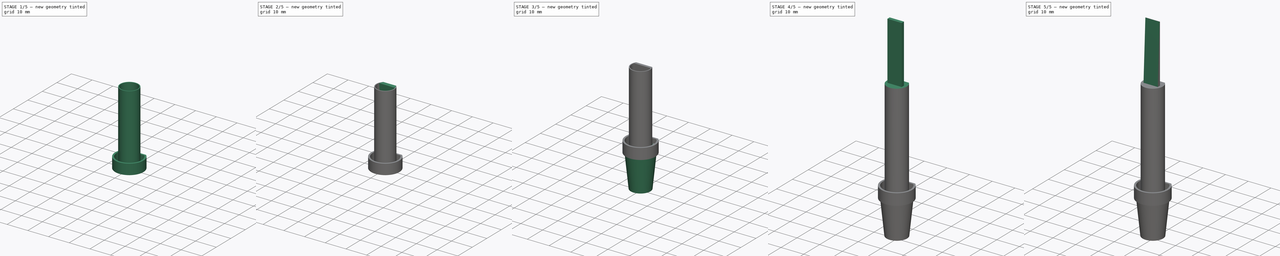
[diagram: build sequence overview — one tinted view per stage of 5, left to right]
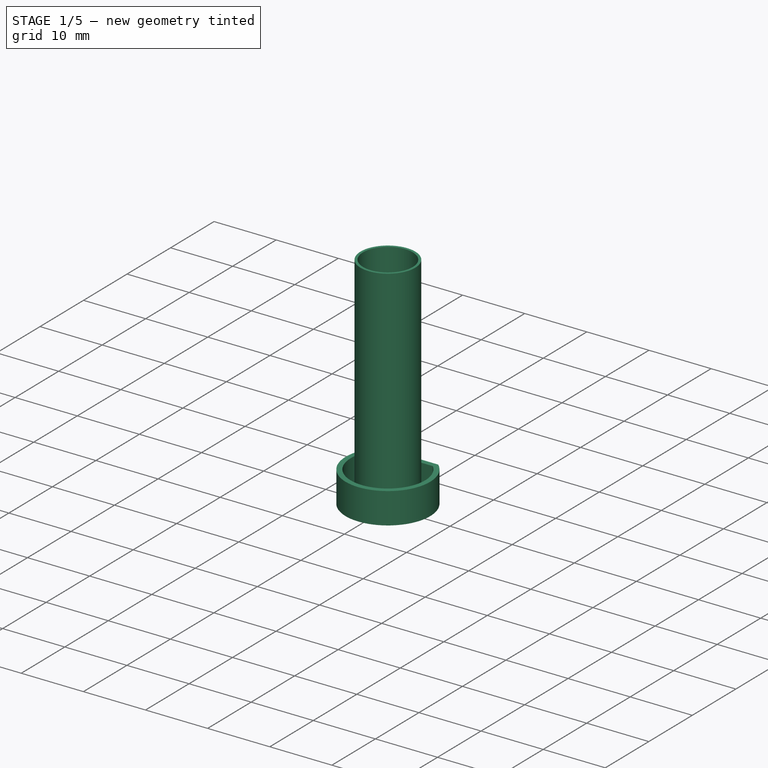
[diagram: stage 1 of 5 — iso view after this stage's code; geometry added in this stage tinted green]
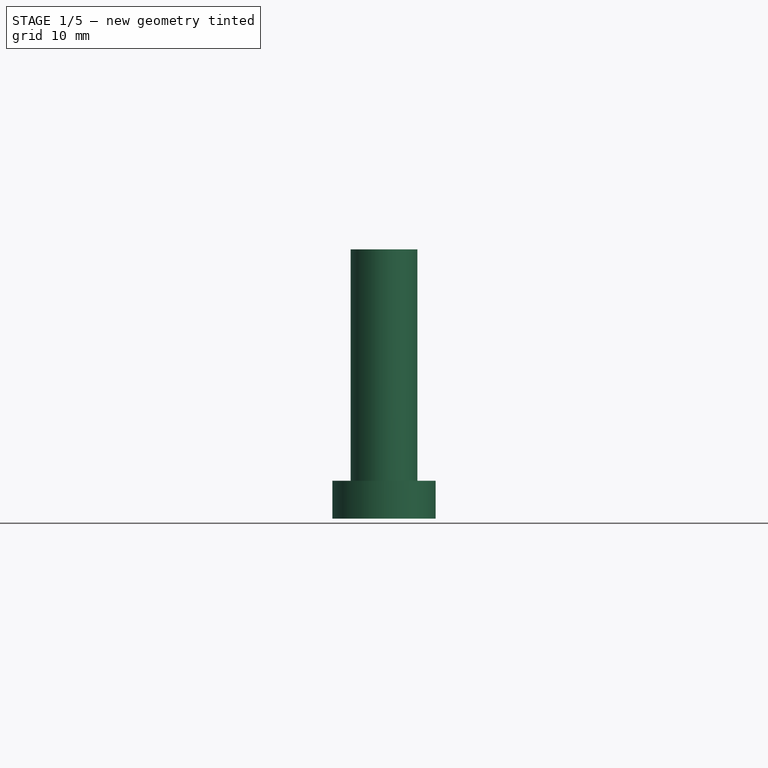
[diagram: stage 1 of 5 — front view after this stage's code; geometry added in this stage tinted green]
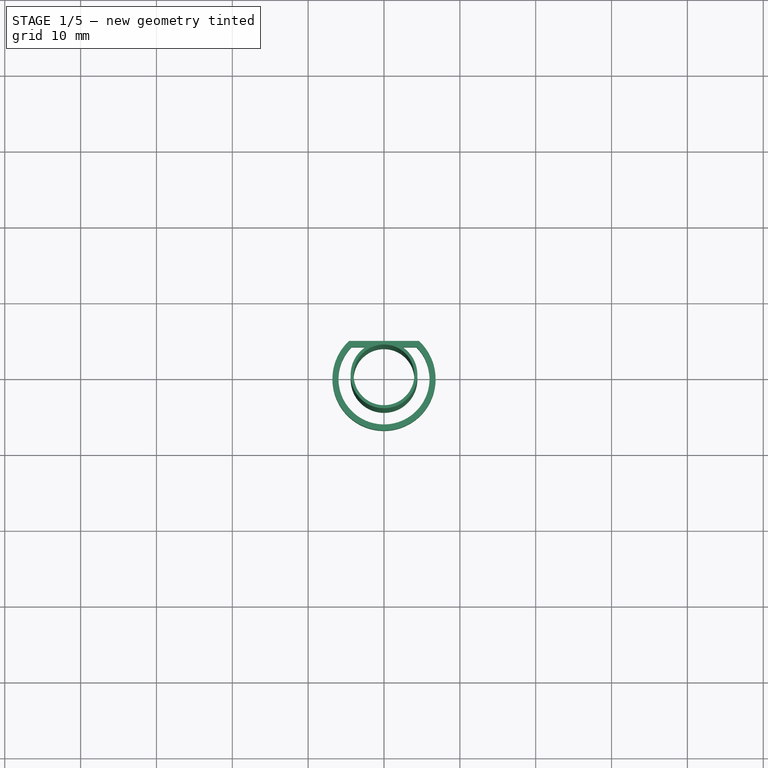
[diagram: stage 1 of 5 — top view after this stage's code; geometry added in this stage tinted green]
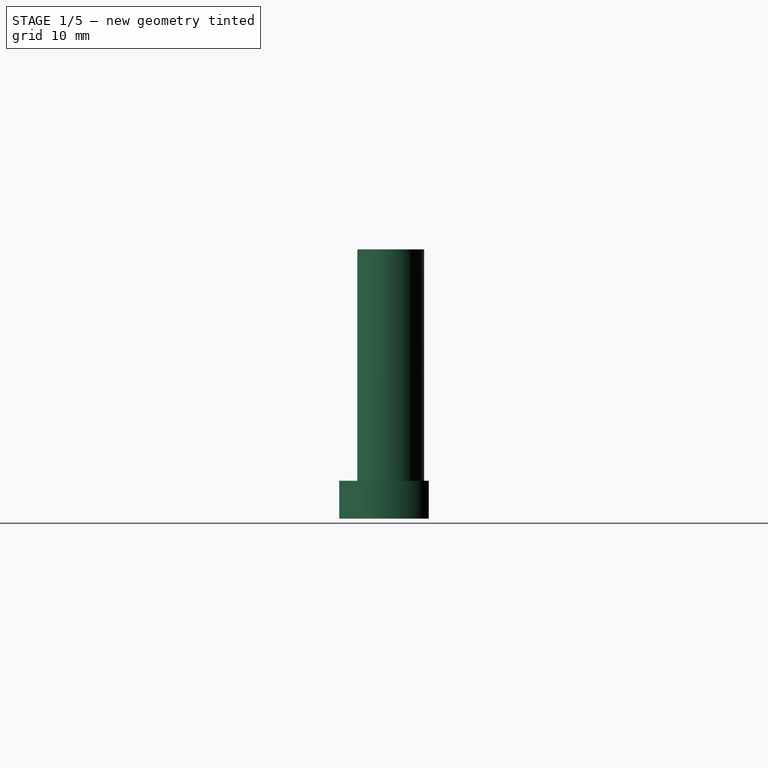
[diagram: stage 1 of 5 — right view after this stage's code; geometry added in this stage tinted green]
FCSTD DOCUMENT  (FreeCAD 1.0R38641 +678 (Git))
Label: stroik1-D-leaf_PLA_flexi-sealing
License: All rights reserved
LicenseURL: https://en.wikipedia.org/wiki/All_rights_reserved
objects: Sketcher::SketchObject×15, PartDesign::Pocket×7, PartDesign::Pad×4, PartDesign::Body×3, PartDesign::Chamfer×2, Part::FeaturePython×1, PartDesign::FeatureBase×1, App::VarSet×1, PartDesign::Mirrored×1, PartDesign::Plane×1, PartDesign::AdditiveLoft×1, PartDesign::ShapeBinder×1
note: 82 computed .brp shape members not serialized (recipe doc carries the construction recipe); baked Part::Feature solids carry a one-line shape summary decoded from their .brp

FEATURE [Part::FeaturePython] Tube  # WARN: FeaturePython — macro-defined, semantics opaque (R4)
  AttacherType = Attacher::AttachEngine3D
  Height = 35.5
  InnerRadius = 4
  OuterRadius = 4.4
  Placement = pos=(0,0,0) rot=(0,1,0;1.5708rad)
  expr: Height = VarSet.leaf_len
  expr: InnerRadius = VarSet.d_inner
  expr: OuterRadius = VarSet.d_outer
FEATURE [PartDesign::FeatureBase] BaseFeature
  BaseFeature = -> Tube
  Suppressed = false
FEATURE [Sketcher::SketchObject] Sketch016
  ArcFitTolerance = 1e-06
  AttachmentSupport = -> [XY_Plane002]
  FullyConstrained = false
  MakeInternals = false
  MapMode = 5
  sketch-geometry (4):
    g0: ArcOfCircle CenterX=0 CenterY=0 CenterZ=0 NormalX=0 NormalY=0 NormalZ=1 AngleXU=0 Radius=6 StartAngle=2.36427 EndAngle=7.06051
    g1: ArcOfCircle CenterX=0 CenterY=0 CenterZ=0 NormalX=0 NormalY=0 NormalZ=1 AngleXU=0 Radius=6.8 StartAngle=2.3137 EndAngle=7.11108
    g2: LineSegment StartX=-4.59971 StartY=5.00826 StartZ=0 EndX=4.59971 EndY=5.00826 EndZ=0
    g3: LineSegment StartX=-4.27675 StartY=4.20826 StartZ=0 EndX=4.27675 EndY=4.20826 EndZ=0
  constraints (11):
    c: Coincident(g0,g-1)
    c: Coincident(g1,g0)
    c: Radius(g1) = 6.8
    c: Radius(g0) = 6
    c: DistanceY(g0,g1) = 0.8
    c: DistanceY(g0,g1) = 0.8
    c: Coincident(g2,g1)
    c: Coincident(g2,g1)
    c: Horizontal(g2)
    c: Coincident(g3,g0)
    c: Coincident(g3,g0)
FEATURE [PartDesign::Pad] Pad004
  Direction = (0,0,1)
  Length = 5
  Length2 = 10
  Profile = -> Sketch016
  ReferenceAxis = -> Sketch016 [N_Axis]
  Refine = true
  Suppressed = false
  Type = 0
FEATURE [PartDesign::Body] Body002  label="Body"
  AllowCompound = false
  Group = -> [Sketch016,Pad004]
  Origin = -> Origin002
  Placement = pos=(35,0,-56) rot=(0,1,0;3.14159rad)
  Tip = -> Pad004
FEATURE [Sketcher::SketchObject] Sketch017
  ArcFitTolerance = 1e-06
  AttachmentSupport = -> [Pocket003]
  FullyConstrained = true
  MakeInternals = false
  MapMode = 5
  Placement = pos=(0,0,45.5) rot=(0,0,1;0rad)
FEATURE [PartDesign::Body] Body  label="stroik"
  AllowCompound = false
  BaseFeature = -> Tube
  Group = -> [BaseFeature,Sketch,Pocket,Sketch001,Pad,Mirrored,Sketch002,Pocket001,Sketch003,Sketch004,DatumPlane,Sketch005,AdditiveLoft,Sketch006,Pad002,Sketch009,Pocket003,Sketch013,Pocket006,Chamfer,Sketch015,Pocket008,Sketch017]
  Origin = -> Origin
  Placement = pos=(0,0,0) rot=(0,1,0;3.14159rad)
  Tip = -> Pocket008
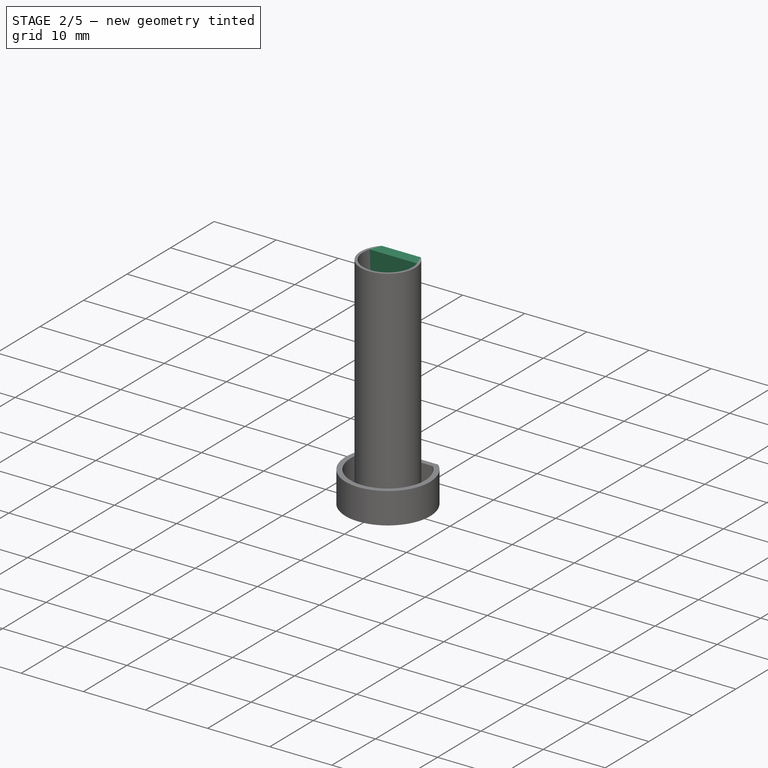
[diagram: stage 2 of 5 — iso view after this stage's code; geometry added in this stage tinted green]
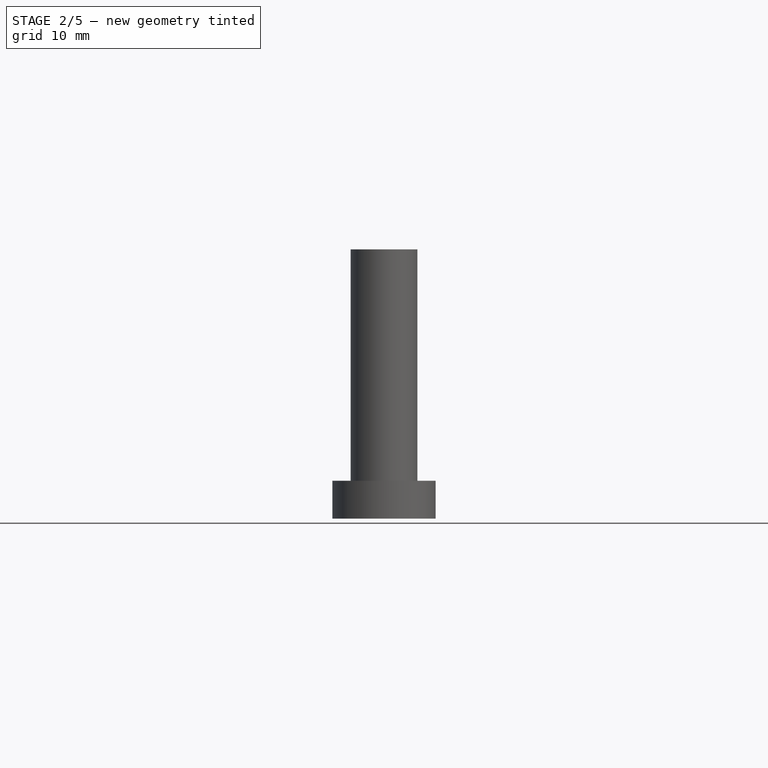
[diagram: stage 2 of 5 — front view after this stage's code; geometry added in this stage tinted green]
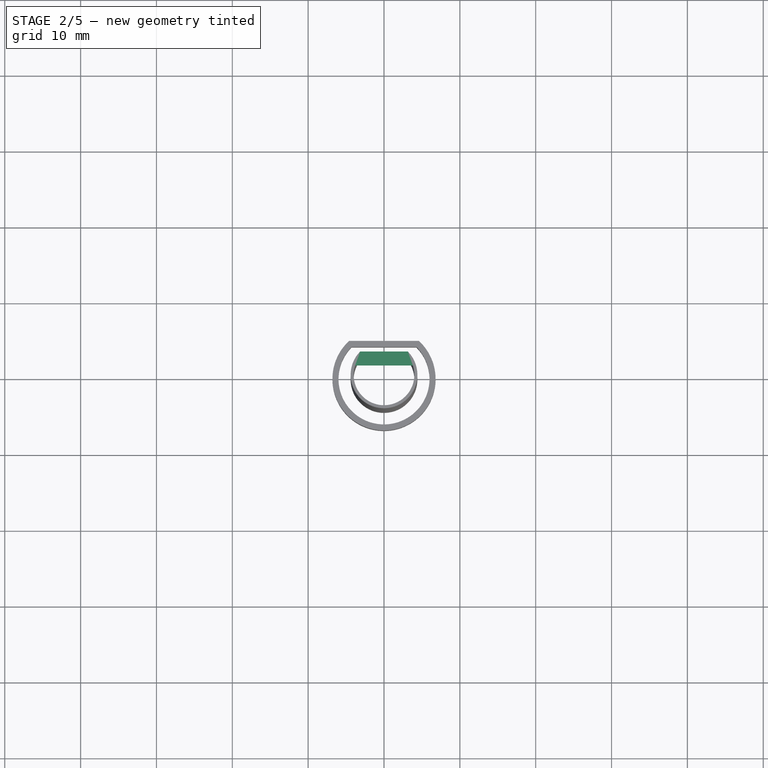
[diagram: stage 2 of 5 — top view after this stage's code; geometry added in this stage tinted green]
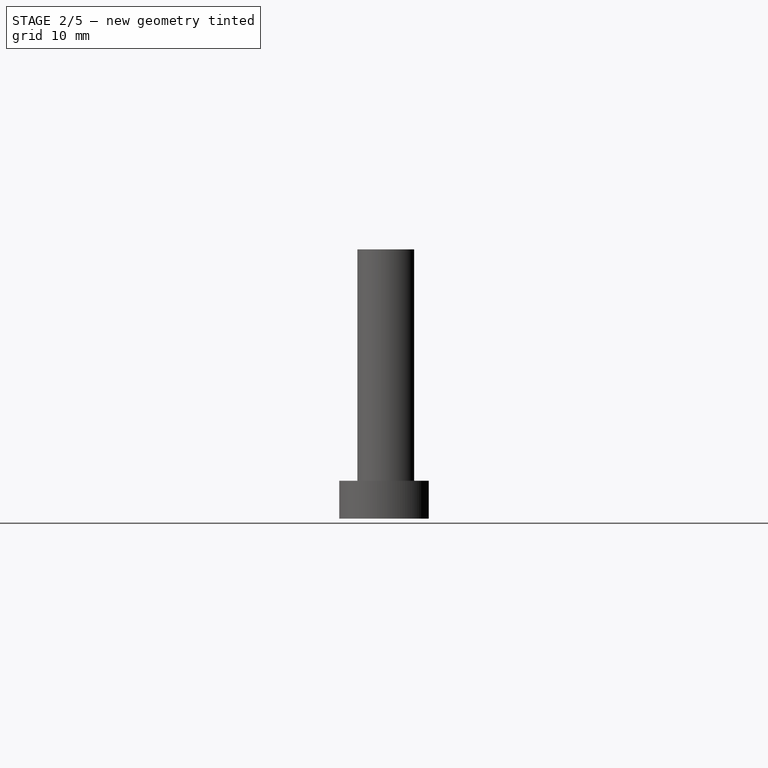
[diagram: stage 2 of 5 — right view after this stage's code; geometry added in this stage tinted green]
FEATURE [App::VarSet] VarSet
  d_inner = 4
  d_outer = 4.4
  d_outer_plug = 6.05
  leaf_end_thickness = 0.19
  leaf_gap = 1.85
  leaf_len = 35.5
  leaf_start_thickness = 1.42
  plug_inner_start = 4
  plug_len = 15
  plug_outer_start = 4.5
FEATURE [Sketcher::SketchObject] Sketch004
  ArcFitTolerance = 1e-06
  FullyConstrained = true
  MakeInternals = false
  MapMode = 5
  Placement = pos=(0,0,0) rot=(1,0,0;3.14159rad)
  expr: Constraints[4] = VarSet.d_outer_plug
  expr: Constraints[7] = VarSet.d_inner
  sketch-geometry (3):
    g0: ArcOfCircle CenterX=0 CenterY=0 CenterZ=0 NormalX=0 NormalY=0 NormalZ=1 AngleXU=0 Radius=4 StartAngle=5.67668 EndAngle=10.0313
    g1: LineSegment StartX=-3.28658 StartY=-2.28 StartZ=0 EndX=3.28658 EndY=-2.28 EndZ=0
    g2: Circle CenterX=0 CenterY=0 CenterZ=0 NormalX=0 NormalY=0 NormalZ=1 AngleXU=0 Radius=6.05
  constraints (8):
    c: Coincident(g1,g0)
    c: Horizontal(g1)
    c: Coincident(g2,g0)
    c: Coincident(g-1,g0)
    c: Radius(g2) = 6.05
    c: Horizontal(g0,g-6)
    c: Coincident(g1,g0)
    c: Radius(g0) = 4
FEATURE [Sketcher::SketchObject] Sketch006
  ArcFitTolerance = 1e-06
  FullyConstrained = true
  MakeInternals = false
  MapMode = 5
  Placement = pos=(0,0,0) rot=(1,0,0;3.14159rad)
  expr: Constraints[22] = 1.1 mm
  sketch-geometry (12):
    g0: LineSegment StartX=3.14223 StartY=-3.08 StartZ=0 EndX=4.4 EndY=0 EndZ=0
    g1: LineSegment StartX=4.4 StartY=0 StartZ=0 EndX=4.14223 EndY=-5.18 EndZ=0
    g2: LineSegment StartX=4.14223 StartY=-5.18 StartZ=0 EndX=2.14223 EndY=-5.18 EndZ=0
    g3: LineSegment StartX=2.14223 StartY=-5.18 StartZ=0 EndX=2.14223 EndY=-4.18 EndZ=0
    g4: LineSegment StartX=2.14223 StartY=-4.18 StartZ=0 EndX=3.14223 EndY=-4.18 EndZ=0
    g5: LineSegment StartX=-4.14223 StartY=-5.18 StartZ=0 EndX=-2.14223 EndY=-5.18 EndZ=0
    g6: LineSegment StartX=-4.4 StartY=0 StartZ=0 EndX=-4.14223 EndY=-5.18 EndZ=0
    g7: LineSegment StartX=-3.14223 StartY=-3.08 StartZ=0 EndX=-4.4 EndY=0 EndZ=0
    g8: LineSegment StartX=-2.14223 StartY=-4.18 StartZ=0 EndX=-3.14223 EndY=-4.18 EndZ=0
    g9: LineSegment StartX=-2.14223 StartY=-5.18 StartZ=0 EndX=-2.14223 EndY=-4.18 EndZ=0
    g10: LineSegment StartX=3.14223 StartY=-4.18 StartZ=0 EndX=3.14223 EndY=-3.08 EndZ=0
    g11: LineSegment StartX=-3.14223 StartY=-4.18 StartZ=0 EndX=-3.14223 EndY=-3.08 EndZ=0
  constraints (29):
    c: Coincident(g-5,g0)
    c: Coincident(g0,g1)
    c: Coincident(g1,g2)
    c: Horizontal(g2)
    c: Coincident(g2,g3)
    c: Vertical(g3)
    c: Coincident(g3,g4)
    c: Horizontal(g4)
    c: Coincident(g4,g10)
    c: Coincident(g7,g6)
    c: Coincident(g6,g5)
    c: Coincident(g5,g9)
    c: Vertical(g9)
    c: Coincident(g9,g8)
    c: Horizontal(g8)
    c: Coincident(g8,g11)
    c: Symmetric(g2,g5,g-2)
    c: DistanceX(g4,g4) = 1
    c: Symmetric(g4,g11,g-2)
    c: Symmetric(g0,g6,g-2)
    c: DistanceY(g3,g3) = 1
    c: Symmetric(g7,g0,g-2)
    c: DistanceY(g10,g0) = 1.1
    c: DistanceX(g2,g2) = 2
    c: Coincident(g0,g-5)
    c: Symmetric(g5,g1,g-2)
    c: Vertical(g10)
    c: Symmetric(g11,g10,g-2)
    c: Coincident(g10,g0)
FEATURE [Sketcher::SketchObject] Sketch009
  ArcFitTolerance = 1e-06
  AttachmentSupport = -> [YZ_Plane]
  FullyConstrained = true
  MakeInternals = false
  MapMode = 5
  Placement = pos=(0,0,0) rot=(0.57735,0.57735,0.57735;2.0944rad)
  expr: .Constraints.gap = VarSet.leaf_gap
  expr: Constraints[19] = 3 / 4 * VarSet.leaf_len * 2 / 2
  expr: Constraints[1] = VarSet.leaf_len / 4
  expr: Constraints[20] = 3 / 4 * VarSet.leaf_len * 2
  sketch-geometry (13):
    g0: GeomPoint X=3.08 Y=8.875 Z=0
    g1: Circle [constr] CenterX=3.08 CenterY=8.875 CenterZ=0 NormalX=0 NormalY=0 NormalZ=1 AngleXU=0 Radius=1
    g2: Circle [constr] CenterX=3.08 CenterY=35.5 CenterZ=0 NormalX=0 NormalY=0 NormalZ=1 AngleXU=0 Radius=1
    g3: Circle [constr] CenterX=0.390239 CenterY=62.125 CenterZ=0 NormalX=0 NormalY=0 NormalZ=1 AngleXU=0 Radius=1
    g4: BSplineCurve [constr] PolesCount=3 KnotsCount=2 Degree=2 IsPeriodic=0
    g5: GeomPoint [constr] X=3.08 Y=8.875 Z=0
    g6: GeomPoint [constr] X=0.390239 Y=62.125 Z=0
    g7: LineSegment [constr] StartX=0.390239 StartY=62.125 StartZ=0 EndX=3.08 EndY=8.875 EndZ=0
    g8: LineSegment StartX=103.08 StartY=35.5 StartZ=0 EndX=103.08 EndY=8.875 EndZ=0
    g9: LineSegment StartX=103.08 StartY=8.875 StartZ=0 EndX=3.08 EndY=8.875 EndZ=0
    g10: LineSegment StartX=2.3561 StartY=36.5 StartZ=0 EndX=103.08 EndY=35.5 EndZ=0
    g11: LineSegment [constr] StartX=3.08 StartY=45.5 StartZ=0 EndX=1.23 EndY=45.5 EndZ=0
    g12: LineSegment StartX=2.3561 StartY=36.5 StartZ=0 EndX=3.08 EndY=8.875 EndZ=0
  constraints (31):
    c: PointOnObject(g0,g-3)
    c: DistanceY(g-3,g0) = 8.875
    c: Weight(g1) = 1
    c: Equal(g1,g2)
    c: Equal(g1,g3)
    c: InternalAlignment(g1,g4)
    c: InternalAlignment(g2,g4)
    c: InternalAlignment(g3,g4)
    c: InternalAlignment(g5,g4)
    c: InternalAlignment(g6,g4)
    c: Coincident(g1,g0)
    c: Coincident(g7,g4)
    c: Coincident(g7,g4)
    c: Vertical(g8)
    c: Coincident(g8,g9)
    c: Coincident(g9,g0)
    c: Horizontal(g9)
    c: DistanceX(g9,g9) = 100
    c: Vertical(g-3,g2)
    c: DistanceY(g0,g2) = 26.625
    c: DistanceY(g0,g4) = 53.25
    c: Coincident(g10,g8)
    c: Coincident(g11,g-3)
    c: PointOnObject(g11,g7)
    c: Horizontal(g11)
    c: DistanceX(g11,g11) = 1.85  'gap'
    c: DistanceY(g2,g10) = 1
    c: Horizontal(g8,g2)
    c: Coincident(g12,g10)
    c: Coincident(g12,g0)
    c: PointOnObject(g10,g4)
FEATURE [Sketcher::SketchObject] Sketch
  ArcFitTolerance = 1e-06
  AttachmentSupport = -> [YZ_Plane]
  ExternalGeometry = -> [BaseFeature]
  FullyConstrained = true
  MakeInternals = false
  MapMode = 5
  Placement = pos=(0,0,0) rot=(0.57735,0.57735,0.57735;2.0944rad)
  expr: Constraints[14] = VarSet.leaf_len / 4
  expr: Constraints[8] = VarSet.d_outer * 0.3
  sketch-geometry (6):
    g0: LineSegment StartX=4.4 StartY=35.5 StartZ=0 EndX=3.08 EndY=35.5 EndZ=0
    g1: LineSegment StartX=3.08 StartY=0 StartZ=0 EndX=4.4 EndY=0 EndZ=0
    g2: LineSegment StartX=4.4 StartY=0 StartZ=0 EndX=4.4 EndY=8.875 EndZ=0
    g3: LineSegment StartX=4.4 StartY=8.875 StartZ=0 EndX=4.4 EndY=35.5 EndZ=0
    g4: LineSegment StartX=3.08 StartY=35.5 StartZ=0 EndX=3.08 EndY=8.875 EndZ=0
    g5: LineSegment StartX=3.08 StartY=8.875 StartZ=0 EndX=3.08 EndY=0 EndZ=0
  constraints (17):
    c: Coincident(g0,g4)
    c: Coincident(g5,g1)
    c: Coincident(g1,g2)
    c: Coincident(g3,g0)
    c: Horizontal(g0)
    c: Horizontal(g1)
    c: Coincident(g0,g-3)
    c: PointOnObject(g5,g-4)
    c: DistanceX(g5,g1) = 1.32
    c: Coincident(g2,g3)
    c: Vertical(g2)
    c: Vertical(g3)
    c: Coincident(g4,g5)
    c: Vertical(g5)
    c: DistanceY(g2,g2) = 8.875
    c: Horizontal(g2,g4)
    c: Vertical(g4)
FEATURE [Sketcher::SketchObject] Sketch001
  ArcFitTolerance = 1e-06
  AttachmentSupport = -> [YZ_Plane]
  ExternalGeometry = -> [Sketch]
  FullyConstrained = true
  MakeInternals = false
  MapMode = 5
  Placement = pos=(0,0,0) rot=(0.57735,0.57735,0.57735;2.0944rad)
  expr: Constraints[12] = 0.8
  expr: Constraints[13] = VarSet.leaf_gap
  sketch-geometry (6):
    g0: LineSegment StartX=3.08 StartY=0 StartZ=0 EndX=2.28 EndY=0 EndZ=0
    g1: LineSegment StartX=2.28 StartY=0 StartZ=0 EndX=2.28 EndY=8.875 EndZ=0
    g2: LineSegment StartX=2.28 StartY=8.875 StartZ=0 EndX=1.23 EndY=35.5 EndZ=0
    g3: LineSegment StartX=1.23 StartY=35.5 StartZ=0 EndX=3.08 EndY=35.5 EndZ=0
    g4: LineSegment StartX=3.08 StartY=35.5 StartZ=0 EndX=3.08 EndY=8.875 EndZ=0
    g5: LineSegment StartX=3.08 StartY=8.875 StartZ=0 EndX=3.08 EndY=0 EndZ=0
  constraints (15):
    c: Coincident(g-4,g0)
    c: PointOnObject(g0,g-1)
    c: Coincident(g0,g1)
    c: Vertical(g1)
    c: Coincident(g1,g2)
    c: Coincident(g2,g3)
    c: Coincident(g3,g-3)
    c: Horizontal(g3)
    c: Coincident(g3,g4)
    c: Coincident(g4,g-4)
    c: Coincident(g4,g5)
    c: Coincident(g5,g0)
    c: DistanceX(g1,g4) = 0.8
    c: DistanceX(g2,g3) = 1.85
    c: Horizontal(g1,g4)
FEATURE [PartDesign::Pocket] Pocket  label="1 ścięcie"
  BaseFeature = -> BaseFeature
  Direction = (-1,0,0)
  Length = 5
  Length2 = 5
  Midplane = true
  Profile = -> Sketch
  ReferenceAxis = -> Sketch [N_Axis]
  Refine = true
  Suppressed = false
  Type = 1
FEATURE [PartDesign::Pad] Pad  label="uzupełnienie"
  AlongSketchNormal = false
  BaseFeature = -> Pocket
  Direction = (1,0,0)
  Length = 13
  Length2 = 10
  Midplane = true
  Profile = -> Sketch001
  ReferenceAxis = -> Sketch001 [N_Axis]
  Refine = true
  Suppressed = false
  Type = 1
  UpToShape = -> [Pocket]
FEATURE [PartDesign::Mirrored] Mirrored
  BaseFeature = -> Pad
  MirrorPlane = -> YZ_Plane
  Originals = -> [Pad]
  Refine = true
  Suppressed = false
  TransformMode = 0
FEATURE [Sketcher::SketchObject] Sketch002
  ArcFitTolerance = 1e-06
  AttachmentSupport = -> [Mirrored]
  ExternalGeometry = -> [Mirrored]
  FullyConstrained = true
  MakeInternals = false
  MapMode = 5
  Placement = pos=(0,3.08,0) rot=(0,0.707107,0.707107;3.14159rad)
  expr: Constraints[11] = VarSet.d_outer / 3
  expr: Constraints[8] = VarSet.leaf_len / 10
  expr: Constraints[9] = VarSet.leaf_len / 3
  sketch-geometry (4):
    g0: LineSegment StartX=1.67556 StartY=20.1167 StartZ=0 EndX=1.67556 EndY=31.95 EndZ=0
    g1: LineSegment StartX=1.67556 StartY=31.95 StartZ=0 EndX=-1.67556 EndY=31.95 EndZ=0
    g2: LineSegment StartX=-1.67556 StartY=31.95 StartZ=0 EndX=-1.67556 EndY=20.1167 EndZ=0
    g3: ArcOfCircle CenterX=0 CenterY=20.1167 CenterZ=0 NormalX=0 NormalY=0 NormalZ=1 AngleXU=0 Radius=1.67556 StartAngle=3.14159 EndAngle=6.28319
  constraints (12):
    c: Coincident(g0,g1)
    c: Coincident(g1,g2)
    c: Coincident(g3,g2)
    c: Coincident(g3,g0)
    c: PointOnObject(g3,g-2)
    c: Horizontal(g0,g2)
    c: Horizontal(g2,g3)
    c: Symmetric(g0,g1,g-2)
    c: DistanceY(g1,g-7) = 3.55
    c: DistanceY(g3,g1) = 11.8333
    c: Vertical(g1,g2)
    c: DistanceX(g0,g-6) = 1.46667
FEATURE [PartDesign::Pocket] Pocket001  label="dziurka"
  BaseFeature = -> Mirrored
  Direction = (0,-1,2e-16)
  Length = 2
  Length2 = 5
  Profile = -> Sketch002
  ReferenceAxis = -> Sketch002 [N_Axis]
  Refine = true
  Suppressed = false
  Type = 0
  expr: Length = VarSet.d_inner / 2
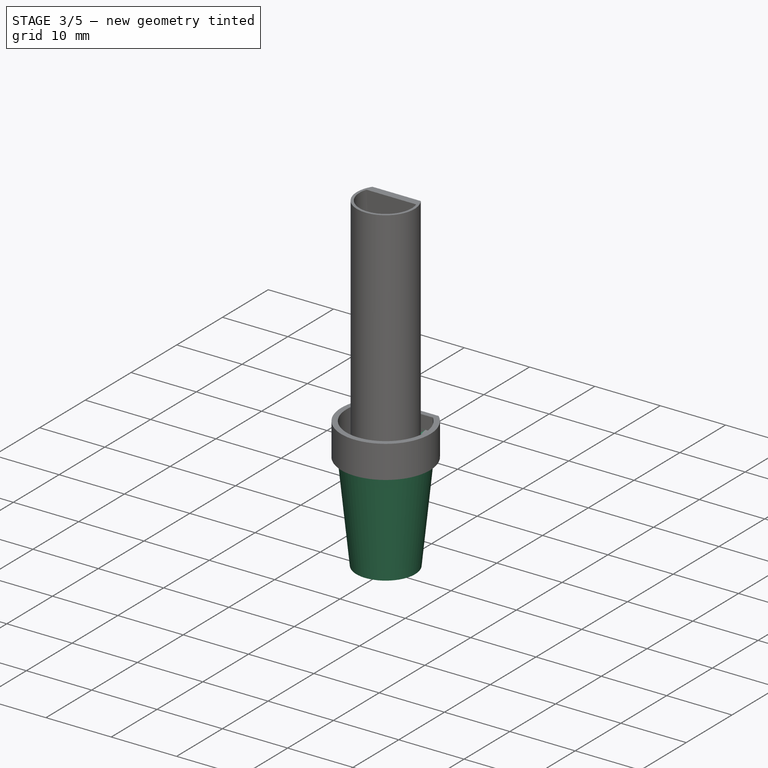
[diagram: stage 3 of 5 — iso view after this stage's code; geometry added in this stage tinted green]
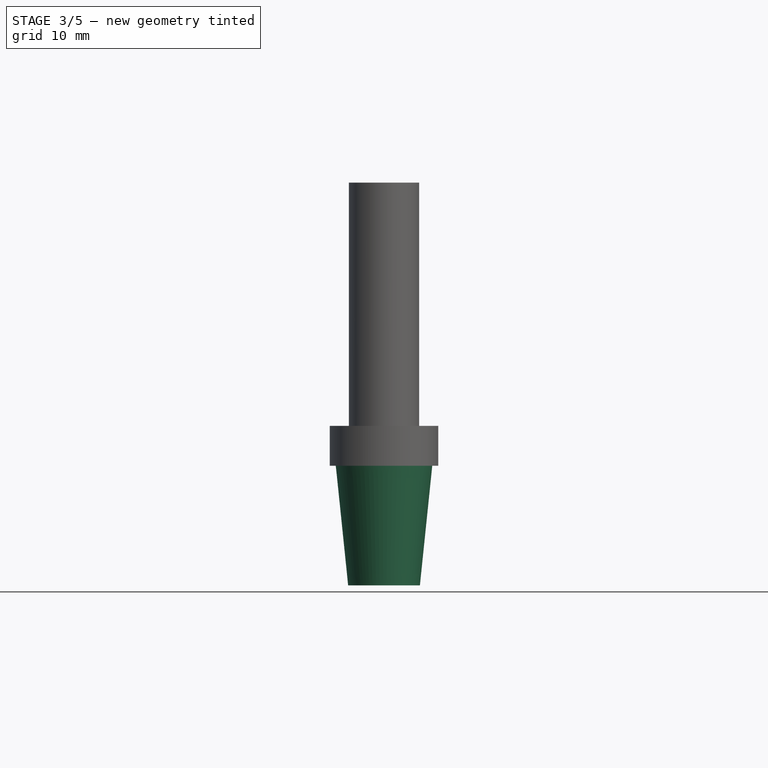
[diagram: stage 3 of 5 — front view after this stage's code; geometry added in this stage tinted green]
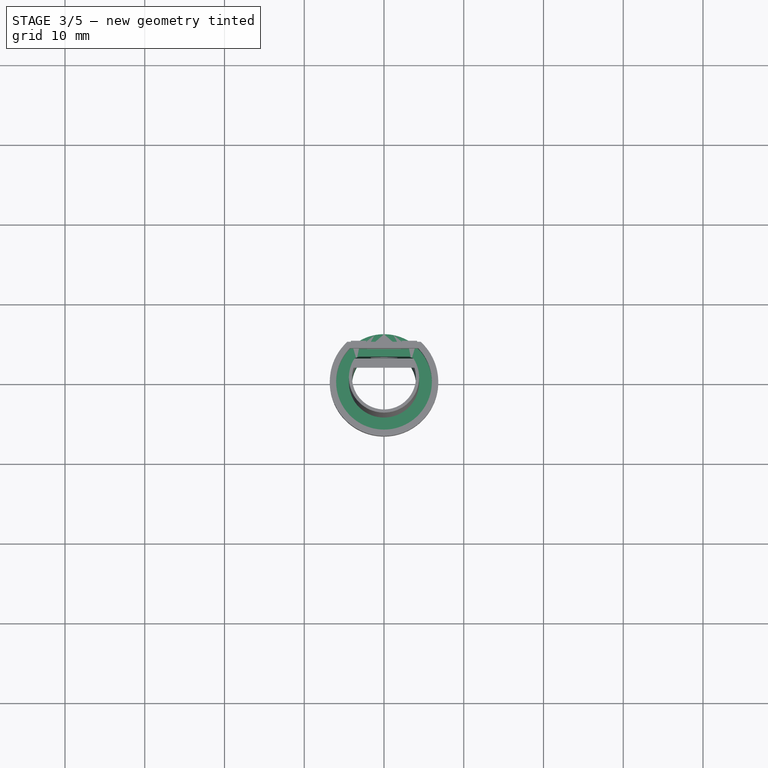
[diagram: stage 3 of 5 — top view after this stage's code; geometry added in this stage tinted green]
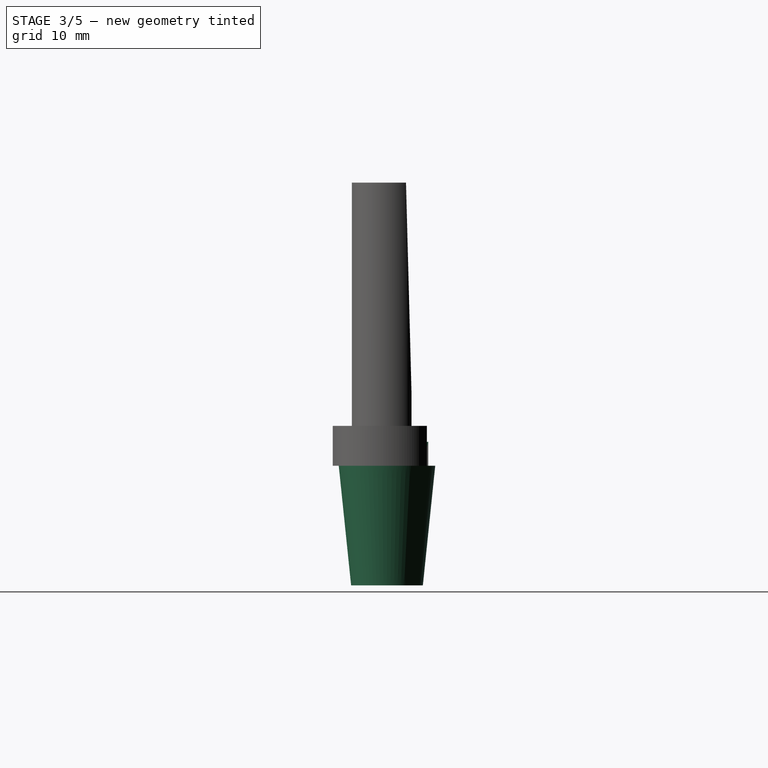
[diagram: stage 3 of 5 — right view after this stage's code; geometry added in this stage tinted green]
FEATURE [Sketcher::SketchObject] Sketch003
  ArcFitTolerance = 1e-06
  AttachmentSupport = -> [Pocket001]
  ExternalGeometry = -> [Pocket001]
  FullyConstrained = true
  MakeInternals = false
  MapMode = 5
  Placement = pos=(0,0,35.5) rot=(0,0,1;0rad)
  sketch-geometry (2):
    g0: ArcOfCircle CenterX=0 CenterY=0 CenterZ=0 NormalX=0 NormalY=0 NormalZ=1 AngleXU=0 Radius=4.4 StartAngle=2.3662 EndAngle=7.05858
    g1: LineSegment StartX=-3.14223 StartY=3.08 StartZ=0 EndX=3.14223 EndY=3.08 EndZ=0
  constraints (5):
    c: Coincident(g0,g-1)
    c: Coincident(g0,g-4)
    c: Coincident(g1,g0)
    c: Coincident(g1,g0)
    c: Horizontal(g1)
FEATURE [PartDesign::Plane] DatumPlane
  AttachmentOffset = pos=(0,0,15) rot=(0,0,1;0rad)
  AttachmentSupport = -> [Pocket001]
  Length = 60
  MapMode = 5
  Placement = pos=(0,0,-15) rot=(1,0,0;3.14159rad)
  ResizeMode = 0
  Width = 60
  expr: .AttachmentOffset.Base.z = VarSet.plug_len
FEATURE [Sketcher::SketchObject] Sketch005
  ArcFitTolerance = 1e-06
  AttachmentSupport = -> [DatumPlane]
  ExternalGeometry = -> [Sketch004]
  FullyConstrained = true
  MakeInternals = false
  MapMode = 5
  Placement = pos=(0,0,-15) rot=(1,0,0;3.14159rad)
  expr: Constraints[2] = VarSet.plug_inner_start
  expr: Constraints[3] = VarSet.plug_outer_start
  sketch-geometry (2):
    g0: Circle CenterX=0 CenterY=0 CenterZ=0 NormalX=0 NormalY=0 NormalZ=1 AngleXU=0 Radius=4
    g1: Circle CenterX=0 CenterY=0 CenterZ=0 NormalX=0 NormalY=0 NormalZ=1 AngleXU=0 Radius=4.5
  constraints (4):
    c: Coincident(g0,g-1)
    c: Coincident(g1,g0)
    c: Radius(g0) = 4
    c: Radius(g1) = 4.5
FEATURE [PartDesign::AdditiveLoft] AdditiveLoft  label="dziubek"
  BaseFeature = -> Pocket001
  Closed = false
  Profile = -> Sketch005
  Refine = true
  Ruled = false
  Sections = -> [Sketch004]
  Suppressed = false
FEATURE [PartDesign::Pad] Pad002  label="uchwyt na listek"
  BaseFeature = -> AdditiveLoft
  Direction = (0,0,-1)
  Length = 3
  Length2 = 10
  Profile = -> Sketch006
  ReferenceAxis = -> Sketch006 [N_Axis]
  Refine = true
  Reversed = true
  Suppressed = false
  Type = 0
  expr: Length = 3 mm
FEATURE [PartDesign::Pocket] Pocket003  label="2 ścięcie"
  BaseFeature = -> Pad002
  Direction = (-1,0,0)
  Length = 100
  Length2 = 5
  Midplane = true
  Profile = -> Sketch009
  ReferenceAxis = -> Sketch009 [N_Axis]
  Refine = true
  Suppressed = false
  Type = 0
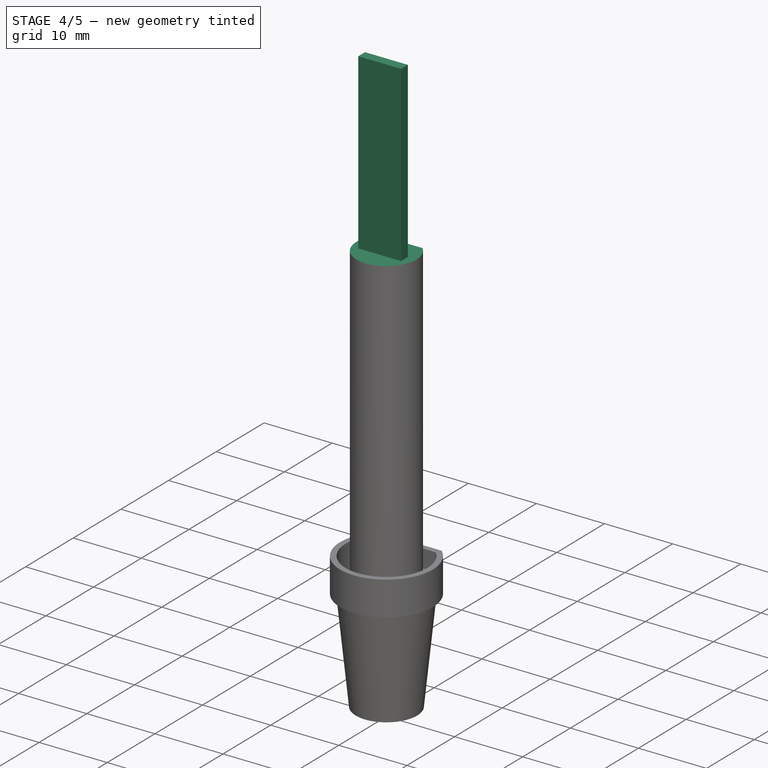
[diagram: stage 4 of 5 — iso view after this stage's code; geometry added in this stage tinted green]
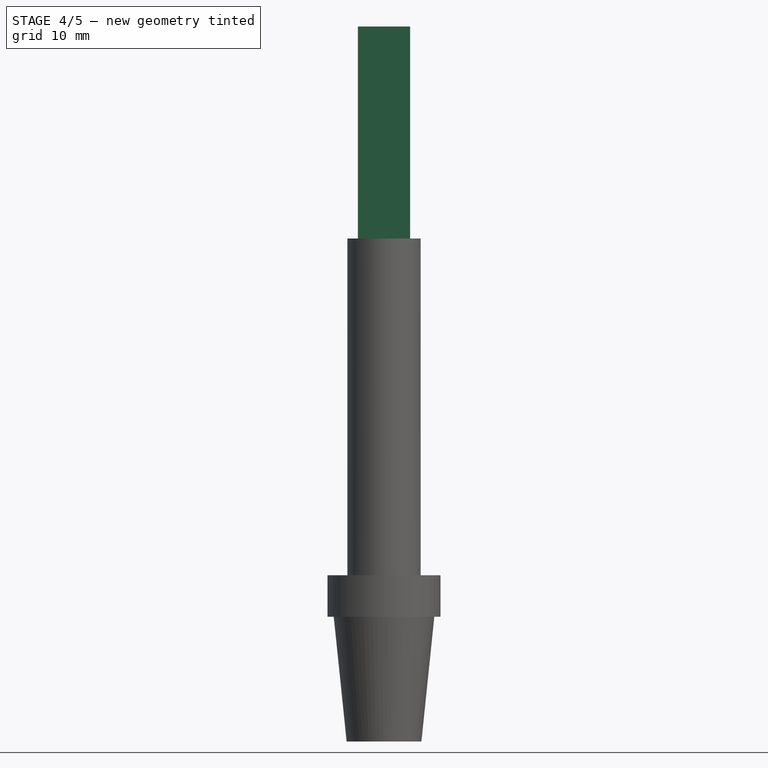
[diagram: stage 4 of 5 — front view after this stage's code; geometry added in this stage tinted green]
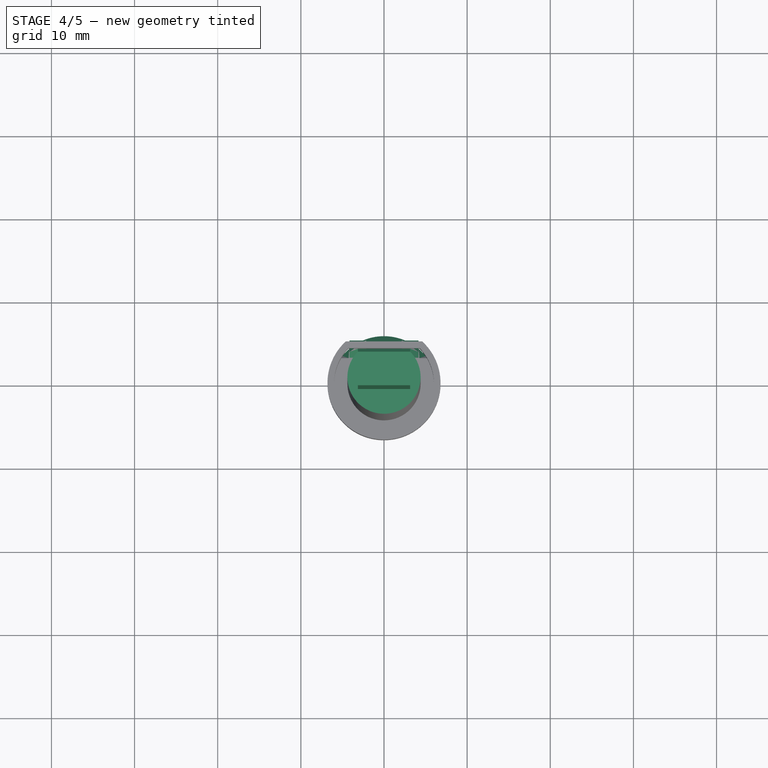
[diagram: stage 4 of 5 — top view after this stage's code; geometry added in this stage tinted green]
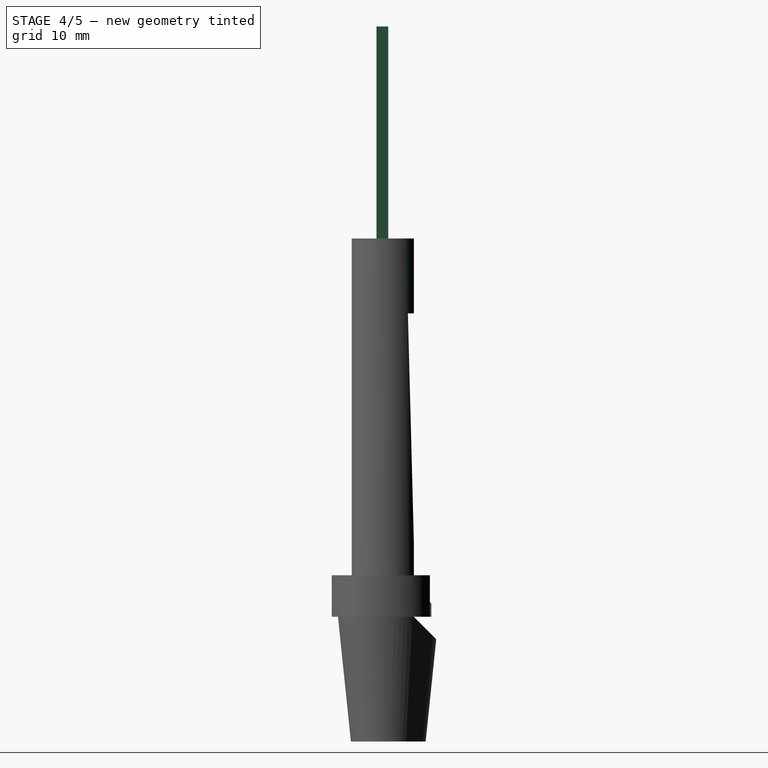
[diagram: stage 4 of 5 — right view after this stage's code; geometry added in this stage tinted green]
FEATURE [PartDesign::ShapeBinder] ShapeBinder
  Support = -> [Mirrored]
  TraceSupport = false
FEATURE [Sketcher::SketchObject] Sketch010  label="main shape"
  ArcFitTolerance = 1e-06
  AttachmentSupport = -> [XZ_Plane001]
  ExternalGeometry = -> [ShapeBinder]
  FullyConstrained = true
  MakeInternals = false
  MapMode = 5
  Placement = pos=(0,0,0) rot=(1,0,0;1.5708rad)
  expr: Constraints[6] = VarSet.leaf_len / 4
  expr: Constraints[9] = VarSet.leaf_len
  sketch-geometry (6):
    g0: LineSegment StartX=-3.14223 StartY=35.5 StartZ=0 EndX=3.14223 EndY=35.5 EndZ=0
    g1: LineSegment StartX=3.14223 StartY=35.5 StartZ=0 EndX=3.14223 EndY=44.375 EndZ=0
    g2: LineSegment StartX=-3.14223 StartY=44.375 StartZ=0 EndX=-3.14223 EndY=35.5 EndZ=0
    g3: LineSegment StartX=3.14223 StartY=44.375 StartZ=0 EndX=3.14223 EndY=71 EndZ=0
    g4: LineSegment StartX=-3.14223 StartY=44.375 StartZ=0 EndX=-3.14223 EndY=71 EndZ=0
    g5: LineSegment StartX=-3.14223 StartY=71 StartZ=0 EndX=3.14223 EndY=71 EndZ=0
  constraints (15):
    c: Coincident(g0,g1)
    c: Coincident(g2,g0)
    c: Vertical(g1)
    c: Vertical(g2)
    c: Coincident(g0,g-3)
    c: Coincident(g0,g-3)
    c: DistanceY(g1,g1) = 8.875
    c: Coincident(g3,g1)
    c: Symmetric(g3,g4,g-2)
    c: DistanceY(g0,g3) = 35.5
    c: Horizontal(g2,g1)
    c: Coincident(g4,g2)
    c: Coincident(g5,g4)
    c: Coincident(g5,g3)
    c: Vertical(g3)
FEATURE [PartDesign::Pad] Pad003
  Direction = (0,-1,2e-16)
  Length = 1.42
  Length2 = 10
  Placement = pos=(0,0,0) rot=(1,0,0;1.5708rad)
  Profile = -> Sketch010
  ReferenceAxis = -> Sketch010 [N_Axis]
  Refine = true
  Suppressed = false
  Type = 0
  expr: Length = VarSet.leaf_start_thickness
FEATURE [Sketcher::SketchObject] Sketch013
  ArcFitTolerance = 1e-06
  AttachmentSupport = -> [YZ_Plane]
  FullyConstrained = true
  MakeInternals = false
  MapMode = 5
  Placement = pos=(0,0,0) rot=(0.57735,0.57735,0.57735;2.0944rad)
  sketch-geometry (3):
    g0: LineSegment StartX=3.08 StartY=0 StartZ=0 EndX=17.2221 EndY=-14.1421 EndZ=0
    g1: LineSegment StartX=17.2221 StartY=-14.1421 StartZ=0 EndX=17.2221 EndY=0 EndZ=0
    g2: LineSegment StartX=17.2221 StartY=0 StartZ=0 EndX=3.08 EndY=0 EndZ=0
  constraints (8):
    c: Coincident(g-3,g0)
    c: Coincident(g0,g1)
    c: Vertical(g1)
    c: Coincident(g1,g2)
    c: Coincident(g2,g0)
    c: Angle(g-2,g0) = 0.785398
    c: Distance(g0,g0) = 20
    c: Angle(g0,g2) = 0.785398
FEATURE [PartDesign::Pocket] Pocket006  label="dziobek wyciety"
  BaseFeature = -> Pocket003
  Direction = (-1,0,0)
  Length = 5
  Length2 = 5
  Midplane = true
  Profile = -> Sketch013
  ReferenceAxis = -> Sketch013 [N_Axis]
  Refine = true
  Suppressed = false
  Type = 1
FEATURE [PartDesign::Body] Body001  label="listek"
  AllowCompound = false
  Group = -> [ShapeBinder,Sketch010,Pad003,Sketch011,Pocket004,Sketch012,Pocket005,Chamfer002]
  Origin = -> Origin001
  Placement = pos=(1.27e-14,25,32) rot=(-1,0,0;3.14159rad)
  Tip = -> Chamfer002
FEATURE [PartDesign::Chamfer] Chamfer  label="uchwyt ma ścięcie001"
  Angle = 45
  Base = -> Pocket006 [Edge89,?Edge90]
  BaseFeature = -> Pocket006
  ChamferType = 0
  FlipDirection = false
  Refine = true
  Size = 1.4
  Size2 = 1
  SupportTransform = false
  Suppressed = false
  UseAllEdges = false
FEATURE [Sketcher::SketchObject] Sketch015
  ArcFitTolerance = 1e-06
  AttachmentSupport = -> [Chamfer]
  FullyConstrained = true
  MakeInternals = false
  MapMode = 5
  Placement = pos=(0,5.18,0) rot=(0,0.707107,0.707107;3.14159rad)
  sketch-geometry (6):
    g0: LineSegment StartX=-4.14223 StartY=3 StartZ=0 EndX=-2.14223 EndY=1.5 EndZ=0
    g1: LineSegment StartX=-2.14223 StartY=1.5 StartZ=0 EndX=-2.14223 EndY=3 EndZ=0
    g2: LineSegment StartX=-2.14223 StartY=3 StartZ=0 EndX=-4.14223 EndY=3 EndZ=0
    g3: LineSegment StartX=2.14223 StartY=3 StartZ=0 EndX=2.14223 EndY=1.5 EndZ=0
    g4: LineSegment StartX=2.14223 StartY=1.5 StartZ=0 EndX=4.14223 EndY=3 EndZ=0
    g5: LineSegment StartX=4.14223 StartY=3 StartZ=0 EndX=2.14223 EndY=3 EndZ=0
  constraints (13):
    c: Coincident(g0,g1)
    c: Coincident(g2,g0)
    c: Vertical(g3)
    c: Coincident(g3,g4)
    c: Coincident(g4,g5)
    c: Horizontal(g3,g0)
    c: Coincident(g2,g1)
    c: Coincident(g5,g3)
    c: Coincident(g3,g-8)
    c: Coincident(g4,g-10)
    c: Coincident(g0,g-9)
    c: Coincident(g1,g-7)
    c: Symmetric(g1,g-7,g0)
FEATURE [PartDesign::Pocket] Pocket008  label="uchwyt ma ścięcie"
  BaseFeature = -> Chamfer
  Direction = (0,-1,2e-16)
  Length = 0
  Length2 = 5
  Profile = -> Sketch015
  ReferenceAxis = -> Sketch015 [N_Axis]
  Refine = true
  Suppressed = false
  Type = 3
  UpToFace = -> Chamfer [Face18]
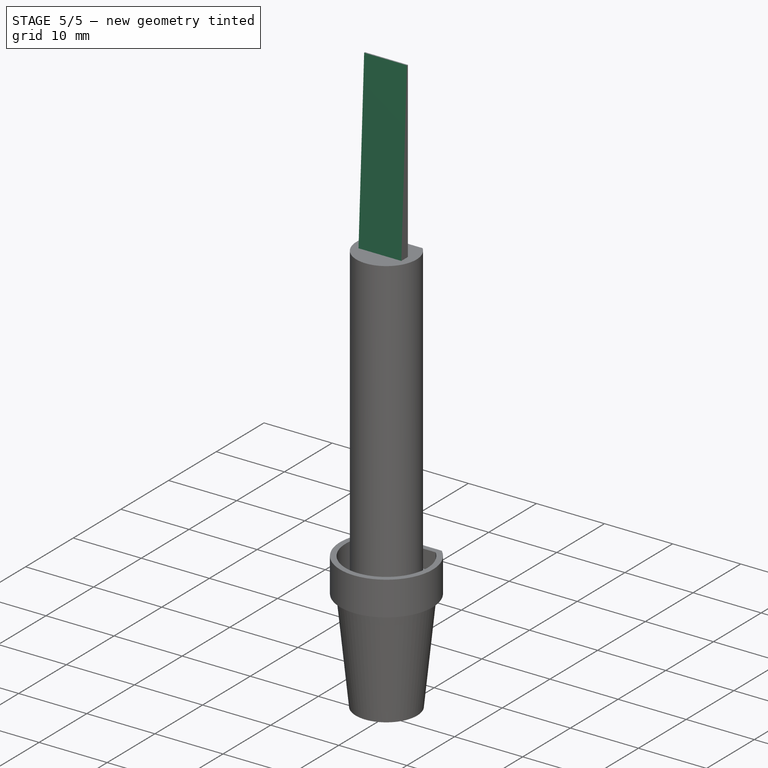
[diagram: stage 5 of 5 — iso view after this stage's code; geometry added in this stage tinted green]
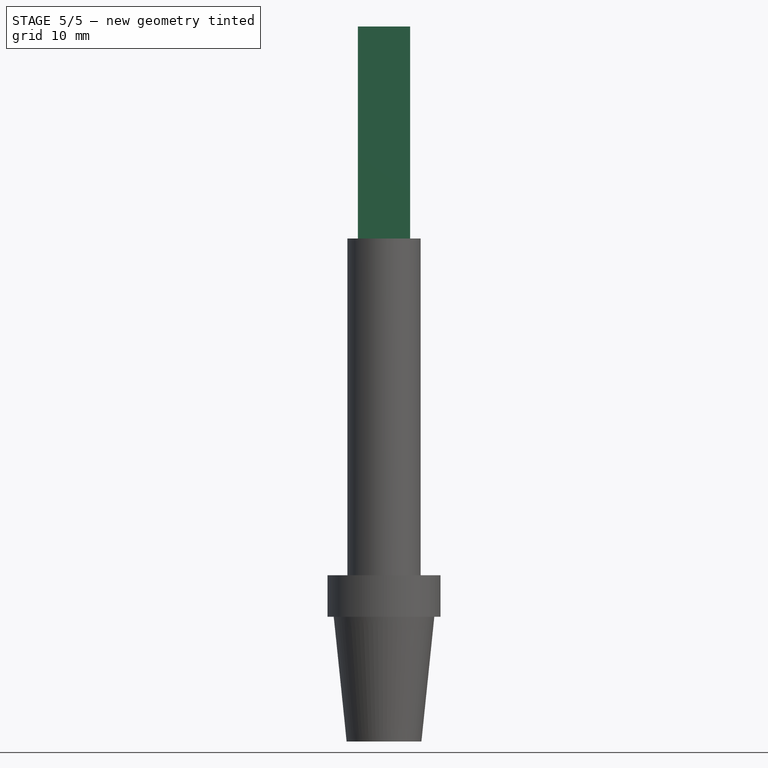
[diagram: stage 5 of 5 — front view after this stage's code; geometry added in this stage tinted green]
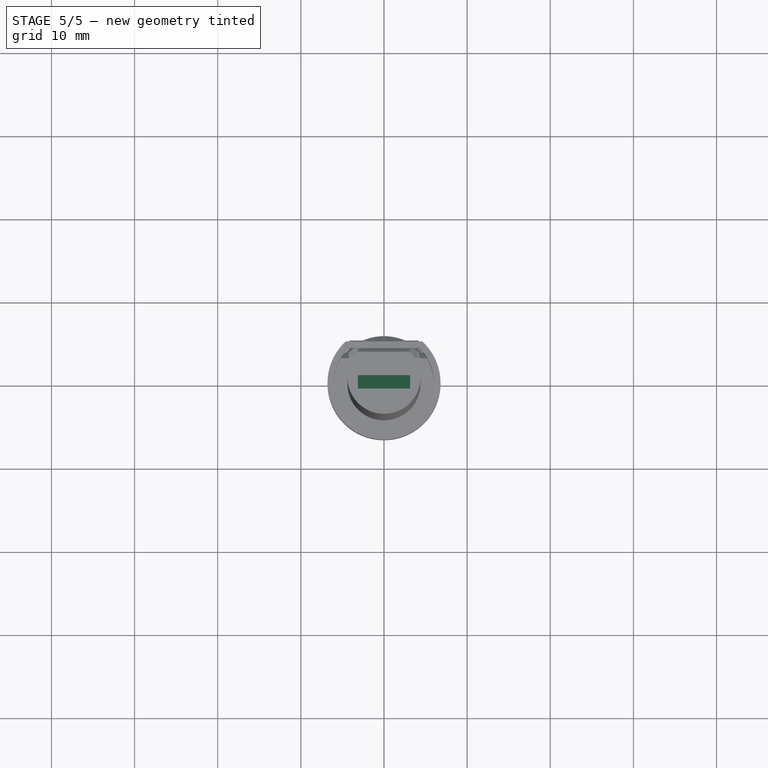
[diagram: stage 5 of 5 — top view after this stage's code; geometry added in this stage tinted green]
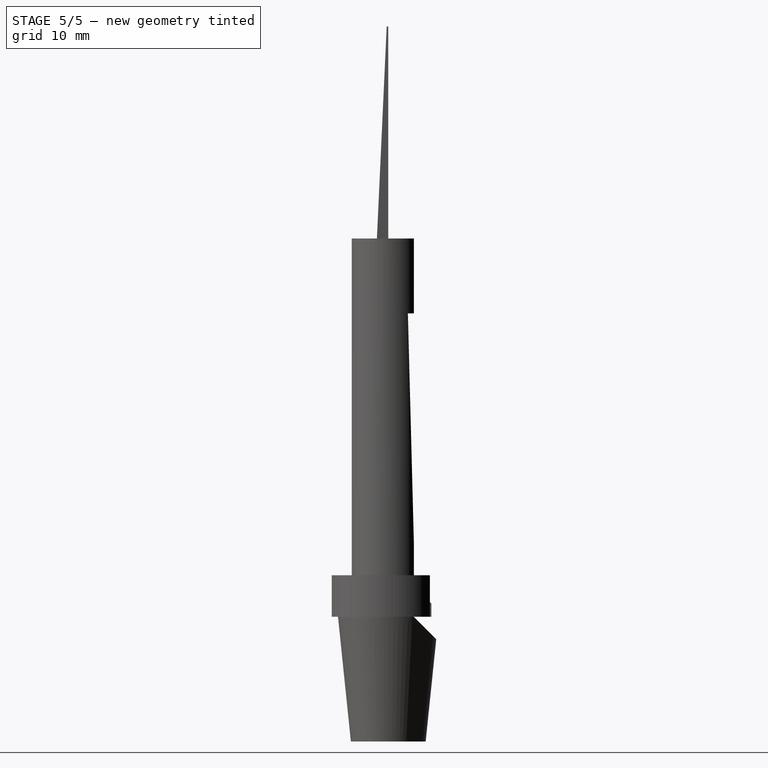
[diagram: stage 5 of 5 — right view after this stage's code; geometry added in this stage tinted green]
FEATURE [Sketcher::SketchObject] Sketch011
  ArcFitTolerance = 1e-06
  AttachmentSupport = -> [Pad003]
  ExternalGeometry = -> [Pad003]
  FullyConstrained = true
  MakeInternals = false
  MapMode = 5
  Placement = pos=(0,7.9e-15,35.5) rot=(1,0,0;3.14159rad)
  sketch-geometry (8):
    g0: LineSegment StartX=-2.14223 StartY=1.42 StartZ=0 EndX=-2.14223 EndY=1 EndZ=0
    g1: LineSegment StartX=-2.14223 StartY=1 StartZ=0 EndX=-7.14223 EndY=1 EndZ=0
    g2: LineSegment StartX=-7.14223 StartY=1 StartZ=0 EndX=-7.14223 EndY=4.92104 EndZ=0
    g3: LineSegment StartX=-7.14223 StartY=4.92104 StartZ=0 EndX=-2.14223 EndY=1.42 EndZ=0
    g4: LineSegment StartX=7.14223 StartY=4.92104 StartZ=0 EndX=2.14223 EndY=1.42 EndZ=0
    g5: LineSegment StartX=2.14223 StartY=1.42 StartZ=0 EndX=2.14223 EndY=1 EndZ=0
    g6: LineSegment StartX=2.14223 StartY=1 StartZ=0 EndX=7.14223 EndY=1 EndZ=0
    g7: LineSegment StartX=7.14223 StartY=1 StartZ=0 EndX=7.14223 EndY=4.92104 EndZ=0
  constraints (21):
    c: PointOnObject(g0,g-3)
    c: Vertical(g0)
    c: Coincident(g0,g1)
    c: Horizontal(g1)
    c: Coincident(g1,g2)
    c: Vertical(g2)
    c: Coincident(g2,g3)
    c: Coincident(g3,g0)
    c: DistanceX(g-4,g0) = 1
    c: Vertical(g5)
    c: Coincident(g5,g6)
    c: Coincident(g6,g7)
    c: Coincident(g7,g4)
    c: Coincident(g4,g5)
    c: Symmetric(g4,g0,g-2)
    c: Symmetric(g5,g0,g-2)
    c: Symmetric(g6,g1,g-2)
    c: Symmetric(g4,g2,g-2)
    c: DistanceY(g-5,g0) = 1
    c: Angle(g-3,g3) = 2.53073
    c: DistanceX(g1,g1) = 5
FEATURE [PartDesign::Pocket] Pocket004  label="uchwyt"
  BaseFeature = -> Pad003
  Direction = (0,0,1)
  Length = 8.875
  Length2 = 5
  Placement = pos=(0,0,0) rot=(1,0,0;1.5708rad)
  Profile = -> Sketch011
  ReferenceAxis = -> Sketch011 [N_Axis]
  Refine = true
  Suppressed = false
  Type = 0
  expr: Length = VarSet.leaf_len / 4
FEATURE [Sketcher::SketchObject] Sketch012
  ArcFitTolerance = 1e-06
  AttachmentSupport = -> [Pocket004]
  ExternalGeometry = -> [Pocket004]
  FullyConstrained = true
  MakeInternals = false
  MapMode = 5
  Placement = pos=(-3.14223,0,-2.99e-14) rot=(0.707107,0,-0.707107;3.14159rad)
  expr: Constraints[6] = VarSet.leaf_end_thickness
  sketch-geometry (3):
    g0: LineSegment StartX=-71 StartY=0.19 StartZ=0 EndX=-71 EndY=14.02 EndZ=0
    g1: LineSegment StartX=-71 StartY=14.02 StartZ=0 EndX=-44.375 EndY=1.42 EndZ=0
    g2: LineSegment StartX=-71 StartY=0.19 StartZ=0 EndX=-44.375 EndY=1.42 EndZ=0
  constraints (8):
    c: Vertical(g0)
    c: Coincident(g1,g0)
    c: DistanceY(g0,g0) = 13.83
    c: Coincident(g2,g0)
    c: Coincident(g2,g1)
    c: Coincident(g1,g-5)
    c: DistanceY(g-4,g0) = 0.19
    c: Vertical(g0,g-4)
FEATURE [PartDesign::Pocket] Pocket005  label="Pochylenie"
  BaseFeature = -> Pocket004
  Direction = (1,0,9.5e-15)
  Length = 5
  Length2 = 5
  Placement = pos=(0,0,0) rot=(1,0,0;1.5708rad)
  Profile = -> Sketch012
  ReferenceAxis = -> Sketch012 [N_Axis]
  Refine = true
  Suppressed = false
  Type = 1
FEATURE [PartDesign::Chamfer] Chamfer002
  Angle = 45
  Base = -> Pocket005 [Edge7,Edge6,Edge5,Edge4,Edge3,Edge8,Edge2]
  BaseFeature = -> Pocket005
  ChamferType = 0
  FlipDirection = false
  Placement = pos=(0,0,0) rot=(1,0,0;1.5708rad)
  Refine = true
  Size = 0.5
  Size2 = 1
  SupportTransform = false
  Suppressed = false
  UseAllEdges = false
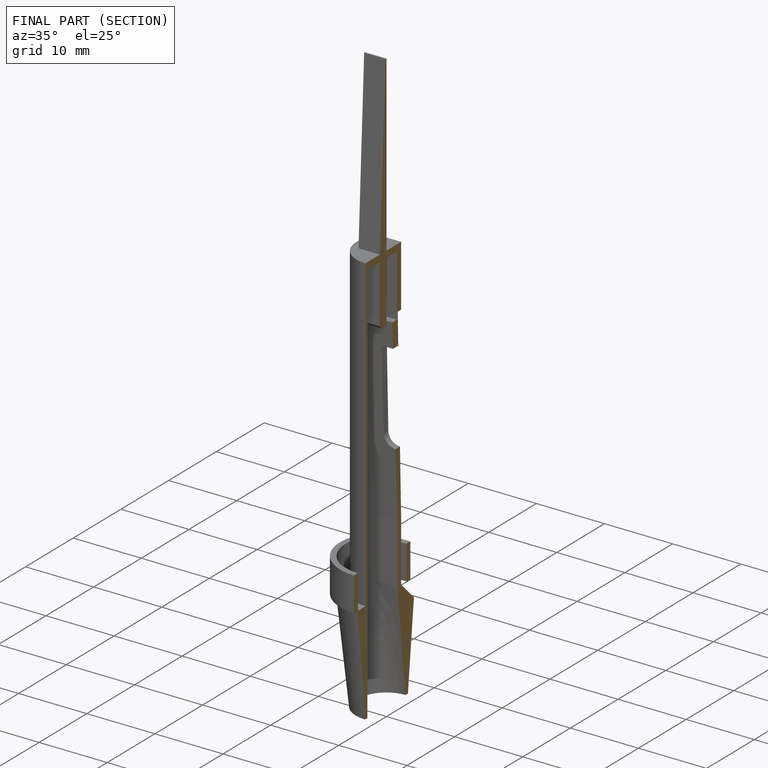
[diagram: finished part — half-section view (interior)]
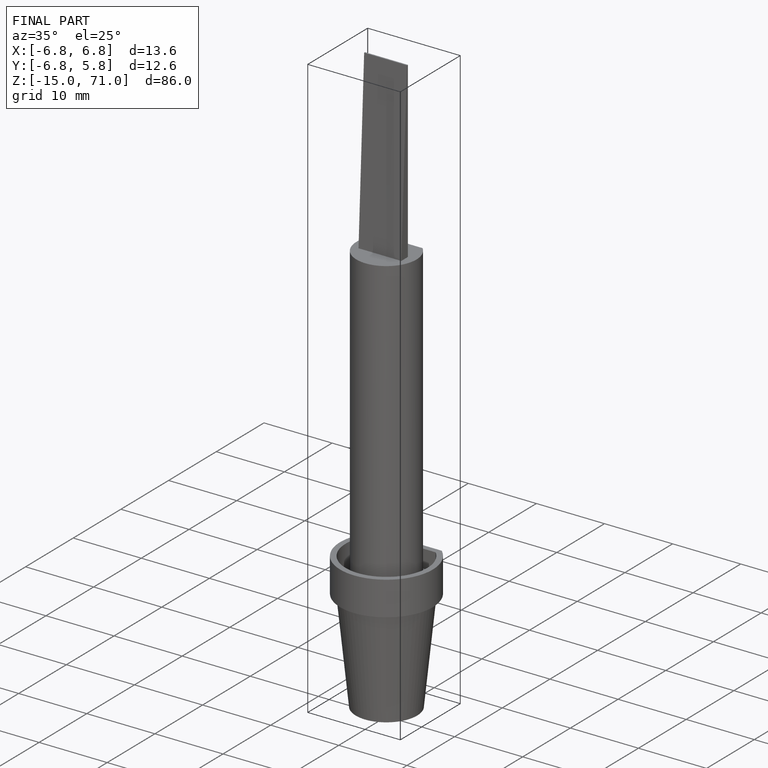
[diagram: finished part — iso view with bounding-box wireframe]
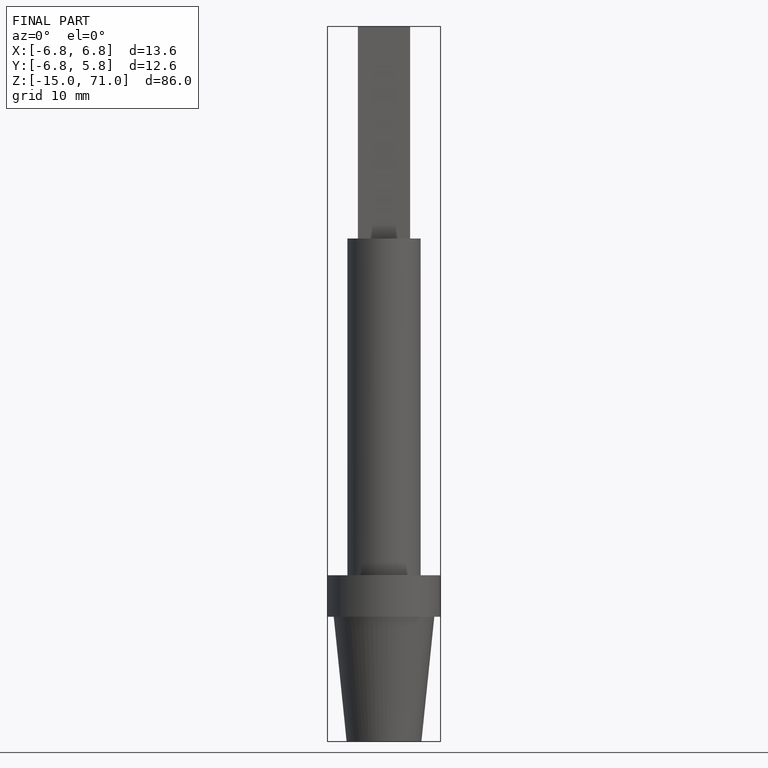
[diagram: finished part — front view with bounding-box wireframe]
